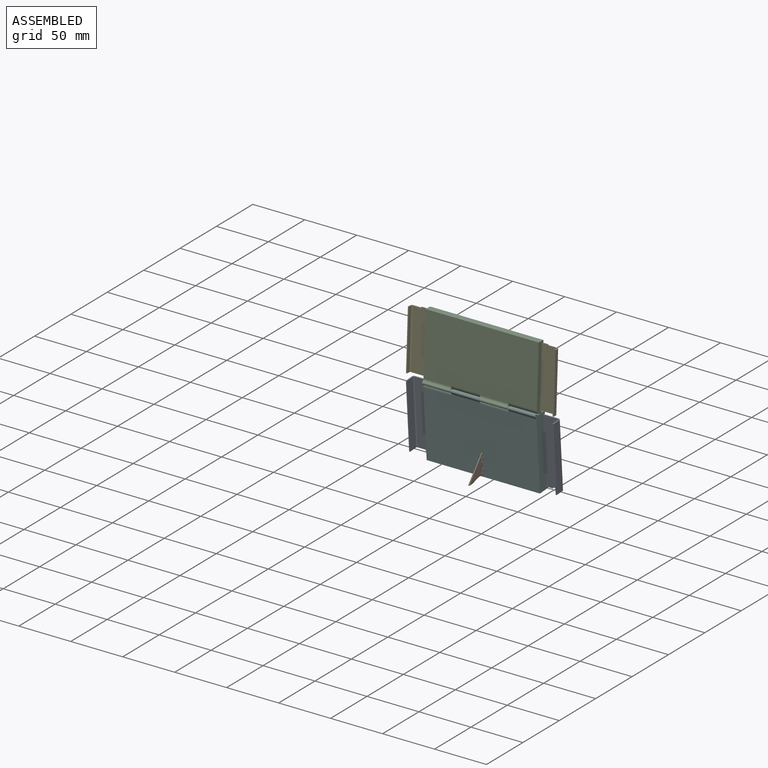
[diagram: assembled view]
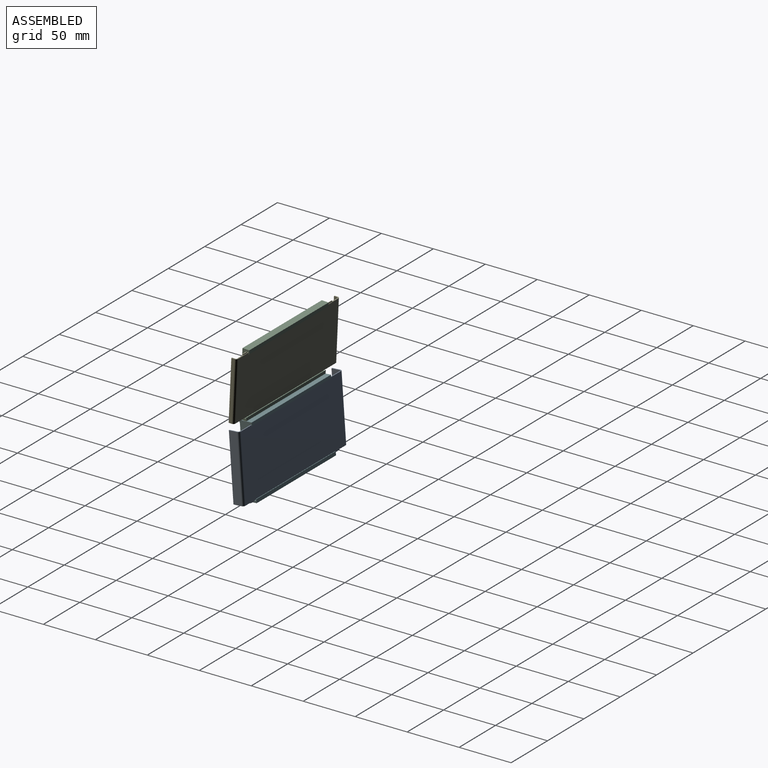
[diagram: assembled view, second angle]
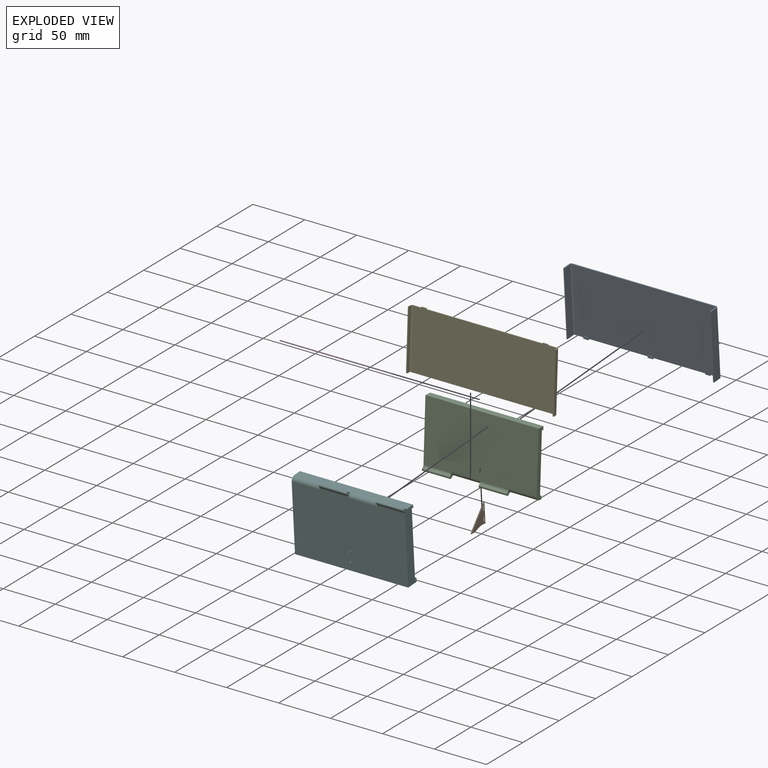
[diagram: exploded view]
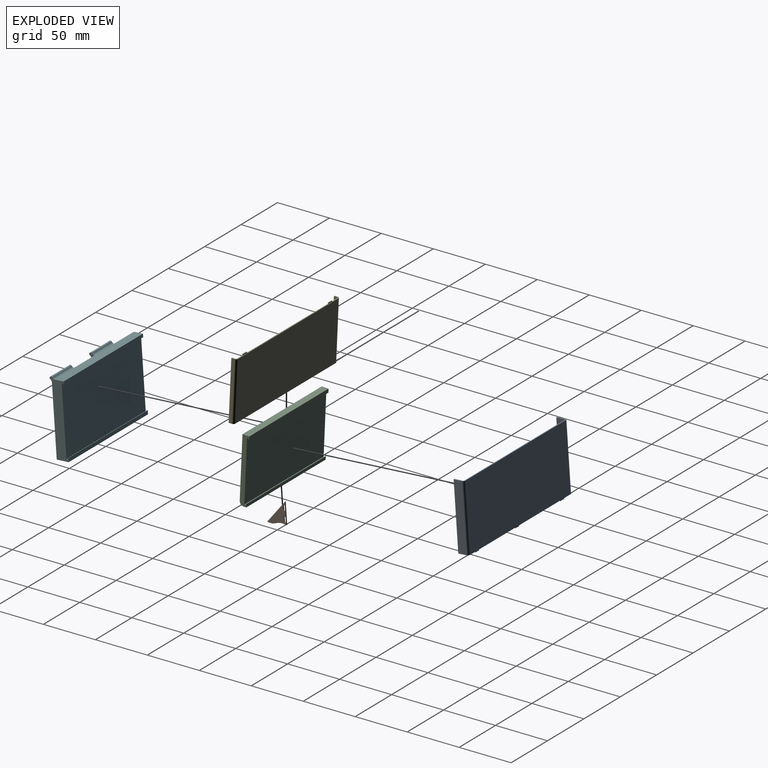
[diagram: exploded view, second angle]
ASSEMBLY  parts=6 mates=5
PART A: 30 faces, bbox 142x64.5x10 mm
  f0: plane 142x10mm, normal (0,-1,0), area 151.2mm2, adj f1,f2,f3,f4,f5,f6,f7,f8
  f1: cylinder r=1mm len=63.5mm, axis (0,1,0), area 99.7mm2, adj f0,f2,f12,f13
  f2: plane 138x64.5mm, normal (0,0,-1), area 8758mm2, adj f0,f1,f3,f13,f15,f16,f17,f18
  f3: cylinder r=1mm len=63.5mm, axis (0,1,0), area 99.7mm2, adj f0,f2,f4,f13
  f4: plane 63.5x8mm, normal (-1,0,0), area 508mm2, adj f0,f3,f5,f13
  f5: plane 63.5x1mm, normal (0,0,-1), area 63.5mm2, adj f0,f4,f6,f13
  f6: plane 63.5x8mm, normal (1,0,0), area 508mm2, adj f0,f5,f7,f13
  f7: cylinder r=2mm len=63.5mm, axis (0,1,0), area 199.5mm2, adj f0,f6,f8,f13
  f8: plane 138x63.5mm, normal (0,0,1), area 8763mm2, adj f0,f7,f9,f13
  f9: cylinder r=2mm len=63.5mm, axis (0,1,0), area 199.5mm2, adj f0,f8,f10,f13
  f10: plane 63.5x8mm, normal (-1,0,0), area 508mm2, adj f0,f9,f11,f13
  f11: plane 63.5x1mm, normal (0,0,-1), area 63.5mm2, adj f0,f10,f12,f13
  f12: plane 63.5x8mm, normal (1,0,0), area 508mm2, adj f0,f1,f11,f13
  f13: plane 142x10mm, normal (0,1,0), area 158.7mm2, adj f1,f2,f3,f4,f5,f6,f7,f8
  f14: plane 5x1mm, normal (0,0,1), area 5mm2, adj f0,f15,f16,f17
  f15: plane 1x0.5mm, normal (-1,0,0), area 0.5mm2, adj f0,f2,f14,f17
  f16: plane 1x0.5mm, normal (1,0,0), area 0.5mm2, adj f0,f2,f14,f17
  f17: plane 5x0.5mm, normal (0,-1,0), area 2.5mm2, adj f2,f14,f15,f16
  f18: plane 5x0.5mm, normal (0,1,0), area 2.5mm2, adj f2,f19,f21,f22
  f19: plane 2x1mm, normal (1,0,0), area 1.5mm2, adj f0,f2,f18,f20,f22,f23
  f20: plane 5x1mm, normal (0,0,1), area 5mm2, adj f0,f19,f21,f23
  f21: plane 2x1mm, normal (-1,0,0), area 1.5mm2, adj f0,f2,f18,f20,f22,f23
  f22: plane 5x2mm, normal (0,0,-1), area 10mm2, adj f18,f19,f21,f23
  f23: plane 5x1mm, normal (0,-1,0), area 5mm2, adj f19,f20,f21,f22
  f24: plane 5x0.5mm, normal (0,1,0), area 2.5mm2, adj f2,f25,f27,f28
  f25: plane 2x1mm, normal (1,0,0), area 1.5mm2, adj f0,f2,f24,f26,f28,f29
  f26: plane 5x1mm, normal (0,0,1), area 5mm2, adj f0,f25,f27,f29
  f27: plane 2x1mm, normal (-1,0,0), area 1.5mm2, adj f0,f2,f24,f26,f28,f29
  f28: plane 5x2mm, normal (0,0,-1), area 10mm2, adj f24,f25,f27,f29
  f29: plane 5x1mm, normal (0,-1,0), area 5mm2, adj f25,f26,f27,f28
PART B: 24 faces, bbox 22.9x21.7x1 mm
  f0: plane 1.53x0.01mm, normal (1,0,0), area 0mm2, adj f7,f8,f11,f23
  f1: plane 2.12x0mm, normal (1,0,0), area 0mm2, adj f6,f8,f20,f22
  f2: plane 4.59x0mm, normal (1,0,0), area 0mm2, adj f6,f8,f15,f16
  f3: plane 4.66x0.01mm, normal (1,0,0), area 0mm2, adj f7,f8,f15,f16
  f4: plane 1.46x0mm, normal (1,0,0), area 0mm2, adj f6,f8,f11,f21
  f5: plane 2.21x0.01mm, normal (1,0,0), area 0mm2, adj f7,f8,f20,f22
  f6: plane 20.3x18.16mm, normal (0,0,-1), area 145.4mm2, adj f1,f2,f4,f11,f12,f13,f14,f15
  f7: plane 20.31x18.18mm, normal (0,0,1), area 145.4mm2, adj f0,f3,f5,f11,f12,f13,f14,f15
  f8: cylinder r=0.5mm len=20.13mm, axis (0,1,0), area 46.7mm2, adj f0,f1,f2,f3,f4,f5,f9,f10
  f9: plane 0.82x0.5mm, normal (0,1,0), area 0.3mm2, adj f8,f22
  f10: plane 0.59x0.5mm, normal (0,-1,0), area 0.2mm2, adj f8,f21,f23
  f11: cylinder r=0.51mm len=1.01mm, axis (-1,0,0), area 1.1mm2, adj f0,f4,f6,f7,f8,f12
  f12: torus R=1.01mm, axis (0,0,-1), area 1.7mm2, adj f6,f7,f11,f13
  f13: cylinder r=0.51mm len=3.5mm, axis (0,1,0), area 5.6mm2, adj f6,f7,f12,f14
  f14: torus R=1.01mm, axis (0,0,-1), area 1.7mm2, adj f6,f7,f13,f15
  f15: cylinder r=0.51mm len=1.01mm, axis (1,0,0), area 1.1mm2, adj f2,f3,f6,f7,f8,f14
  f16: cylinder r=0.51mm len=1.01mm, axis (-1,0,0), area 1.1mm2, adj f2,f3,f6,f7,f8,f17
  f17: torus R=1.01mm, axis (0,0,-1), area 1.7mm2, adj f6,f7,f16,f18
  f18: cylinder r=0.51mm len=3.5mm, axis (0,1,0), area 5.6mm2, adj f6,f7,f17,f19
  f19: torus R=1.01mm, axis (0,0,-1), area 1.7mm2, adj f6,f7,f18,f20
  f20: cylinder r=0.51mm len=1.01mm, axis (1,0,0), area 1.1mm2, adj f1,f5,f6,f7,f8,f19
  f21: bspline ~20.82x2.59mm, area 15.3mm2, adj f4,f6,f8,f10,f22,f23
  f22: cylinder r=0.51mm len=21.5mm, axis (-0.67,-0.74,0), area 44.5mm2, adj f1,f5,f6,f7,f8,f9,f21,f23
  f23: bspline ~22.89x2.61mm, area 15.3mm2, adj f0,f7,f8,f10,f21,f22
PART C: 27 faces, bbox 109x64.5x8.5 mm
  f0: cylinder r=4mm len=27.25mm, axis (-1,0,0), area 171.2mm2, adj f4,f7,f8,f25
  f1: cylinder r=4mm len=27.75mm, axis (-1,0,0), area 174.4mm2, adj f7,f8,f20,f26
  f2: plane 109x1.5mm, normal (0,1,0), area 163.5mm2, adj f3,f4,f6,f14
  f3: plane 109x58.5mm, normal (0,0,1), area 6376.5mm2, adj f2,f4,f6,f9
  f4: plane 62.5x6.5mm, normal (1,0,0), area 287.1mm2, adj f0,f2,f3,f5,f7,f8,f9,f10
  f5: plane 109x6.5mm, normal (0,-1,0), area 708.5mm2, adj f4,f6,f8,f11
  f6: plane 64.5x8.5mm, normal (-1,0,0), area 297.4mm2, adj f2,f3,f5,f7,f8,f9,f10,f11
  f7: plane 109x3.5mm, normal (0,1,0), area 326.5mm2, adj f0,f1,f4,f6,f10,f17,f20,f22
  f8: plane 109x59.5mm, normal (0,0,-1), area 6430.5mm2, adj f0,f1,f4,f5,f6,f16,f20,f21
  f9: plane 109x1.5mm, normal (0,-1,0), area 163.5mm2, adj f3,f4,f6,f12
  f10: plane 109x3mm, normal (0,0,1), area 327mm2, adj f4,f6,f7,f13
  f11: plane 109x3.5mm, normal (0,0,1), area 381.5mm2, adj f4,f5,f6,f15
  f12: plane 109x1mm, normal (0,0,-1), area 109mm2, adj f4,f6,f9,f13
  f13: plane 109x0.5mm, normal (0,-1,0), area 54.5mm2, adj f4,f6,f10,f12
  f14: plane 109x1.5mm, normal (0,0,-1), area 163.5mm2, adj f2,f4,f6,f15
  f15: plane 109x0.5mm, normal (0,1,0), area 54.5mm2, adj f4,f6,f11,f14
  f16: cylinder r=2.58mm len=26.75mm, axis (-1,0,0), area 74.4mm2, adj f6,f8,f18,f20
  f17: cylinder r=2.58mm len=26.75mm, axis (-1,0,0), area 74.4mm2, adj f6,f7,f18,f20
  f18: cylinder r=1.5mm len=26.75mm, axis (-1,0,0), area 140.1mm2, adj f6,f16,f17,f20
  f19: cylinder r=0.53mm len=26.75mm, axis (-1,0,0), area 88.2mm2, adj f6,f20
  f20: plane 6x6mm, normal (1,0,0), area 10.3mm2, adj f1,f7,f8,f16,f17,f18,f19
  f21: cylinder r=2.58mm len=27.25mm, axis (-1,0,0), area 75.8mm2, adj f8,f23,f25,f26
  f22: cylinder r=2.58mm len=27.25mm, axis (-1,0,0), area 75.8mm2, adj f7,f23,f25,f26
  f23: cylinder r=1.5mm len=27.25mm, axis (-1,0,0), area 142.7mm2, adj f21,f22,f25,f26
  f24: cylinder r=0.53mm len=27.25mm, axis (-1,0,0), area 89.9mm2, adj f25,f26
  f25: plane 6x6mm, normal (1,0,0), area 10.3mm2, adj f0,f7,f8,f21,f22,f23,f24
  f26: plane 6x6mm, normal (-1,0,0), area 10.3mm2, adj f1,f7,f8,f21,f22,f23,f24
PART D: 3 faces, bbox 108x1x1 mm
  f0: cylinder r=0.5mm len=108mm, axis (-1,0,0), area 339.3mm2, adj f1,f2
  f1: plane 1x1mm, normal (1,0,0), area 0.8mm2, adj f0
  f2: plane 1x1mm, normal (-1,0,0), area 0.8mm2, adj f0
PART E: 24 faces, bbox 142x58x5 mm
  f0: plane 142x5mm, normal (0,-1,0), area 143.7mm2, adj f1,f2,f3,f4,f5,f6,f7,f8
  f1: cylinder r=1mm len=57mm, axis (0,1,0), area 89.5mm2, adj f0,f2,f12,f13
  f2: plane 138x58mm, normal (0,0,-1), area 7866mm2, adj f0,f1,f3,f13,f15,f16,f17,f18
  f3: cylinder r=1mm len=57mm, axis (0,1,0), area 89.5mm2, adj f0,f2,f4,f13
  f4: plane 57x3mm, normal (-1,0,0), area 171mm2, adj f0,f3,f5,f13
  f5: plane 57x1mm, normal (0,0,-1), area 57mm2, adj f0,f4,f6,f13
  f6: plane 57x3mm, normal (1,0,0), area 171mm2, adj f0,f5,f7,f13
  f7: cylinder r=2mm len=57mm, axis (0,1,0), area 179.1mm2, adj f0,f6,f8,f13
  f8: plane 138x57mm, normal (0,0,1), area 7866mm2, adj f0,f7,f9,f13
  f9: cylinder r=2mm len=57mm, axis (0,1,0), area 179.1mm2, adj f0,f8,f10,f13
  f10: plane 57x3mm, normal (-1,0,0), area 171mm2, adj f0,f9,f11,f13
  f11: plane 57x1mm, normal (0,0,-1), area 57mm2, adj f0,f10,f12,f13
  f12: plane 57x3mm, normal (1,0,0), area 171mm2, adj f0,f1,f11,f13
  f13: plane 142x5mm, normal (0,1,0), area 148.7mm2, adj f1,f2,f3,f4,f5,f6,f7,f8
  f14: plane 5x1mm, normal (0,0,1), area 5mm2, adj f0,f15,f16,f17
  f15: plane 1x0.5mm, normal (-1,0,0), area 0.5mm2, adj f0,f2,f14,f17
  f16: plane 1x0.5mm, normal (1,0,0), area 0.5mm2, adj f0,f2,f14,f17
  f17: plane 5x0.5mm, normal (0,-1,0), area 2.5mm2, adj f2,f14,f15,f16
  f18: plane 5x0.5mm, normal (0,1,0), area 2.5mm2, adj f2,f19,f21,f22
  f19: plane 2x1mm, normal (1,0,0), area 1.5mm2, adj f0,f2,f18,f20,f22,f23
  f20: plane 5x1mm, normal (0,0,1), area 5mm2, adj f0,f19,f21,f23
  f21: plane 2x1mm, normal (-1,0,0), area 1.5mm2, adj f0,f2,f18,f20,f22,f23
  f22: plane 5x2mm, normal (0,0,-1), area 10mm2, adj f18,f19,f21,f23
  f23: plane 5x1mm, normal (0,-1,0), area 5mm2, adj f19,f20,f21,f22
PART F: 50 faces, bbox 109x71x13.5 mm
  f0: cylinder r=4mm len=27.25mm, axis (-1,0,0), area 171.2mm2, adj f4,f7,f8,f34
  f1: cylinder r=4mm len=27.75mm, axis (-1,0,0), area 174.4mm2, adj f7,f8,f28,f35
  f2: plane 109x1.5mm, normal (0,1,0), area 159.9mm2, adj f3,f4,f6,f12,f19,f22,f29
  f3: plane 109x65mm, normal (0,0,1), area 7054.2mm2, adj f2,f4,f6,f9,f17,f18,f29
  f4: plane 69x11.5mm, normal (1,0,0), area 661.3mm2, adj f0,f2,f3,f5,f7,f8,f9,f10
  f5: plane 109x11.5mm, normal (0,-1,0), area 1253.5mm2, adj f4,f6,f8,f11
  f6: plane 71x13.5mm, normal (-1,0,0), area 671.6mm2, adj f2,f3,f5,f7,f8,f9,f10,f11
  f7: plane 109x8.5mm, normal (0,1,0), area 871.5mm2, adj f0,f1,f4,f6,f10,f25,f28,f31
  f8: plane 109x66mm, normal (0,0,-1), area 7131.8mm2, adj f0,f1,f4,f5,f6,f24,f28,f30
  f9: plane 109x1.5mm, normal (0,-1,0), area 163.5mm2, adj f3,f4,f6,f20
  f10: plane 109x3mm, normal (0,0,1), area 327mm2, adj f4,f6,f7,f21
  f11: plane 109x3.5mm, normal (0,0,1), area 381.5mm2, adj f4,f5,f6,f23
  f12: plane 7.25x1mm, normal (0,0,-1), area 6.5mm2, adj f2,f14,f15,f19,f29
  f13: plane 6.5x4.75mm, normal (0,0,1), area 30.6mm2, adj f14,f15,f16,f17,f18,f19
  f14: plane 5.5x1mm, normal (0,1,0), area 5.5mm2, adj f12,f13,f15,f19
  f15: plane 1x0.75mm, normal (-0.71,0.71,0), area 1mm2, adj f12,f13,f14,f16,f29
  f16: plane 4.5x0.25mm, normal (-0.71,0,0.71), area 1.5mm2, adj f13,f15,f17,f29
  f17: plane 7.25x0.5mm, normal (0,-0.71,0.71), area 4.9mm2, adj f3,f13,f16,f18,f29
  f18: plane 4.75x0.5mm, normal (0.71,0,0.71), area 3mm2, adj f3,f13,f17,f19
  f19: plane 1x1mm, normal (0.71,0.71,0), area 1.2mm2, adj f2,f12,f13,f14,f18
  f20: plane 109x1mm, normal (0,0,-1), area 109mm2, adj f4,f6,f9,f21
  f21: plane 109x0.5mm, normal (0,-1,0), area 54.5mm2, adj f4,f6,f10,f20
  f22: plane 109x1.5mm, normal (0,0,-1), area 163.5mm2, adj f2,f4,f6,f23
  f23: plane 109x0.5mm, normal (0,1,0), area 54.5mm2, adj f4,f6,f11,f22
  f24: cylinder r=2.58mm len=26.75mm, axis (-1,0,0), area 74.4mm2, adj f6,f8,f26,f28
  f25: cylinder r=2.58mm len=26.75mm, axis (-1,0,0), area 74.4mm2, adj f6,f7,f26,f28
  f26: cylinder r=1.5mm len=26.75mm, axis (-1,0,0), area 140.1mm2, adj f6,f24,f25,f28
  f27: cylinder r=0.53mm len=26.75mm, axis (-1,0,0), area 88.2mm2, adj f6,f28
  f28: plane 6x6mm, normal (1,0,0), area 10.3mm2, adj f1,f7,f8,f24,f25,f26,f27
  f29: plane 4.5x0.75mm, normal (-1,0,0), area 1.2mm2, adj f2,f3,f12,f15,f16,f17
  f30: cylinder r=2.58mm len=27.25mm, axis (-1,0,0), area 75.8mm2, adj f8,f32,f34,f35
  f31: cylinder r=2.58mm len=27.25mm, axis (-1,0,0), area 75.8mm2, adj f7,f32,f34,f35
  f32: cylinder r=1.5mm len=27.25mm, axis (-1,0,0), area 142.7mm2, adj f30,f31,f34,f35
  f33: cylinder r=0.53mm len=27.25mm, axis (-1,0,0), area 89.9mm2, adj f34,f35
  f34: plane 6x6mm, normal (1,0,0), area 10.3mm2, adj f0,f7,f8,f30,f31,f32,f33
  f35: plane 6x6mm, normal (-1,0,0), area 10.3mm2, adj f1,f7,f8,f30,f31,f32,f33
  f36: plane 3.03x0.45mm, normal (0.44,0,-0.9), area 1.5mm2, adj f37,f39,f40,f42
  f37: cylinder r=0.5mm len=3.03mm, axis (0,1,0), area 6.1mm2, adj f36,f38,f39,f40
  f38: plane 3.03x0.45mm, normal (-0.44,0,-0.9), area 1.5mm2, adj f37,f39,f40,f41
  f39: plane 2x1.24mm, normal (0,-1,0), area 1.4mm2, adj f8,f36,f37,f38,f41,f42
  f40: plane 2x1.24mm, normal (0,1,0), area 1.4mm2, adj f8,f36,f37,f38,f41,f42
  f41: cylinder r=1mm len=3.03mm, axis (0,1,0), area 4.2mm2, adj f8,f38,f39,f40
  f42: cylinder r=1mm len=3.03mm, axis (0,1,0), area 4.2mm2, adj f8,f36,f39,f40
  f43: cylinder r=1mm len=3mm, axis (0,1,0), area 4.1mm2, adj f8,f44,f48,f49
  f44: plane 3x0.45mm, normal (0.44,0,-0.9), area 1.5mm2, adj f43,f45,f48,f49
  f45: cylinder r=0.5mm len=3mm, axis (0,1,0), area 6.1mm2, adj f44,f46,f48,f49
  f46: plane 3x0.45mm, normal (-0.44,0,-0.9), area 1.5mm2, adj f45,f47,f48,f49
  f47: cylinder r=1mm len=3mm, axis (0,1,0), area 4.1mm2, adj f8,f46,f48,f49
  f48: plane 2x1.24mm, normal (0,-1,0), area 1.4mm2, adj f8,f43,f44,f45,f46,f47
  f49: plane 2x1.24mm, normal (0,1,0), area 1.4mm2, adj f8,f43,f44,f45,f46,f47
PLACE A rot(axis=(0,-0.68,-0.73),180deg) t=(-2.54,11.32,-2.97)mm
PLACE B rot(axis=(0.6,0.55,0.59),121.6deg) t=(9.34,-0.24,-3.57)mm
PLACE C rot(axis=(-1,0,0),92.6deg) t=(-1.72,6.25,2.19)mm
PLACE D t=(-1.84,0.13,-0.53)mm fixed
PLACE E rot(axis=(-1,0,0),92.6deg) t=(-2.37,6.28,2.69)mm
PLACE F rot(axis=(0,0.68,0.73),180deg) t=(-1.97,11.31,-2.76)mm
MATE revolute C.f18 <-> D.f0  axis (1,0,0) through (-1.72,0.13,-0.53)mm
MATE planar C.f3 <-> E.f2  axis (0,1,-0.05) through (-1.72,6.55,30.96)mm
MATE revolute D.f0 <-> F.f26  axis (-1,0,0) through (-1.97,0.13,-0.53)mm
MATE planar F.f3 <-> A.f2  axis (0,1,0.07) through (-1.98,12.54,-34.62)mm
MATE revolute B.f8 <-> F.f37  axis (0,-0.07,1) through (-1.97,3.54,-53.43)mm
